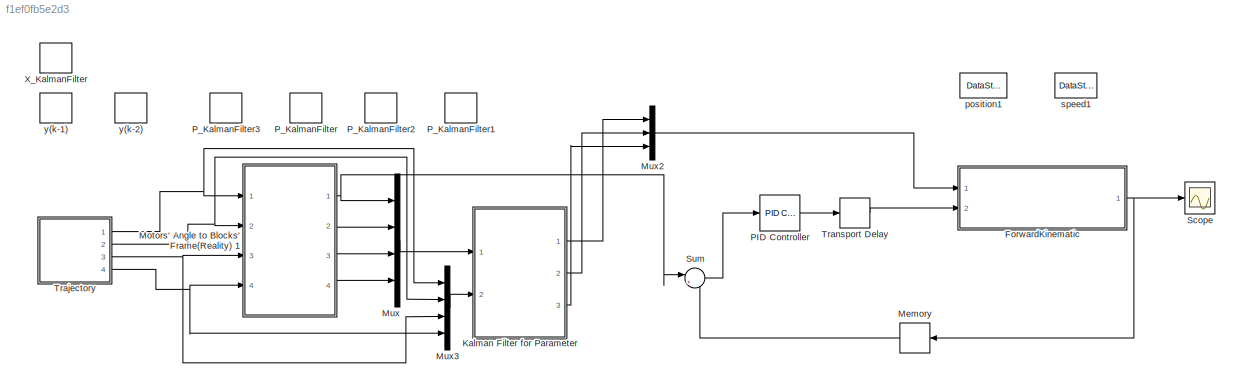
MODEL slx_f1ef0fb5e2d3
KIND model
CONFIG AbsTol = auto
CONFIG FixedStep = 0.01
CONFIG MaxStep = auto
CONFIG MinStep = auto
CONFIG RelTol = 1e-3
CONFIG SampleTimeConstraint = Unconstrained
CONFIG Solver = ode5
CONFIG SolverMode = Auto
CONFIG SolverName = ode5
CONFIG StartTime = 0.0
CONFIG StopTime = 10.0
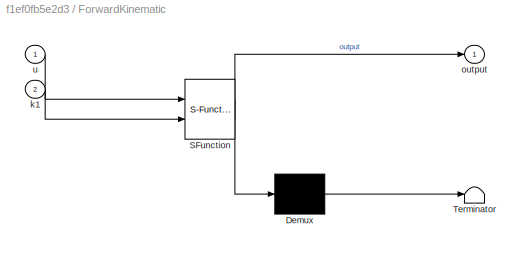
BLOCK [SubSystem] ForwardKinematic
  ErrorFcn = Stateflow.Translate.translate
  PermitHierarchicalResolution = ExplicitOnly
  Ports = [2, 1]
  RequestExecContextInheritance = off
  SFBlockType = MATLAB Function
  TreatAsAtomicUnit = on
BLOCK [Demux] ForwardKinematic/ Demux 
  Outputs = 1
  Ports = [1, 1]
BLOCK [S-Function] ForwardKinematic/ SFunction 
  EnableBusSupport = on
  FunctionName = sf_sfun
  PortCounts = [2 2]
  Ports = [2, 2]
  Tag = Stateflow S-Function KFPIDtest 4
BLOCK [Terminator] ForwardKinematic/ Terminator 
BLOCK [Inport] ForwardKinematic/k1
  IconDisplay = Port number
  Port = 2
BLOCK [Outport] ForwardKinematic/output
  IconDisplay = Port number
BLOCK [Inport] ForwardKinematic/u
  IconDisplay = Port number
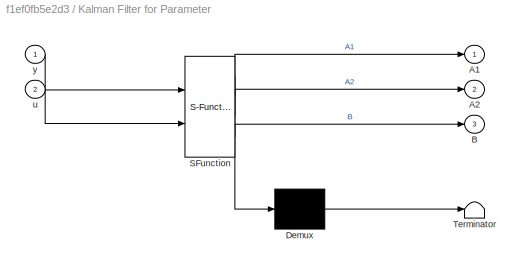
BLOCK [SubSystem] Kalman Filter for Parameter
  ErrorFcn = Stateflow.Translate.translate
  PermitHierarchicalResolution = ExplicitOnly
  Ports = [2, 3]
  RequestExecContextInheritance = off
  SFBlockType = MATLAB Function
  TreatAsAtomicUnit = on
BLOCK [Demux] Kalman Filter for Parameter/ Demux 
  Outputs = 1
  Ports = [1, 1]
BLOCK [S-Function] Kalman Filter for Parameter/ SFunction 
  EnableBusSupport = on
  FunctionName = sf_sfun
  PortCounts = [2 4]
  Ports = [2, 4]
  Tag = Stateflow S-Function KFPIDtest 3
BLOCK [Terminator] Kalman Filter for Parameter/ Terminator 
BLOCK [Outport] Kalman Filter for Parameter/A1
  IconDisplay = Port number
BLOCK [Outport] Kalman Filter for Parameter/A2
  IconDisplay = Port number
  Port = 2
BLOCK [Outport] Kalman Filter for Parameter/B
  IconDisplay = Port number
  Port = 3
BLOCK [Inport] Kalman Filter for Parameter/u
  IconDisplay = Port number
  Port = 2
BLOCK [Inport] Kalman Filter for Parameter/y
  IconDisplay = Port number
BLOCK [Memory] Memory
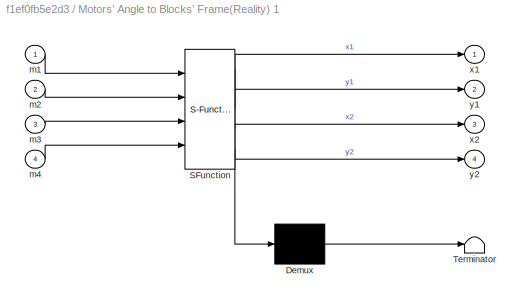
BLOCK [SubSystem] Motors' Angle to Blocks' Frame(Reality) 1
  ErrorFcn = Stateflow.Translate.translate
  PermitHierarchicalResolution = ExplicitOnly
  Ports = [4, 4]
  RequestExecContextInheritance = off
  SFBlockType = MATLAB Function
  TreatAsAtomicUnit = on
BLOCK [Demux] Motors' Angle to Blocks' Frame(Reality) 1/ Demux 
  Outputs = 1
  Ports = [1, 1]
BLOCK [S-Function] Motors' Angle to Blocks' Frame(Reality) 1/ SFunction 
  EnableBusSupport = on
  FunctionName = sf_sfun
  PortCounts = [4 5]
  Ports = [4, 5]
  Tag = Stateflow S-Function KFPIDtest 1
BLOCK [Terminator] Motors' Angle to Blocks' Frame(Reality) 1/ Terminator 
BLOCK [Inport] Motors' Angle to Blocks' Frame(Reality) 1/m1
  IconDisplay = Port number
BLOCK [Inport] Motors' Angle to Blocks' Frame(Reality) 1/m2
  IconDisplay = Port number
  Port = 2
BLOCK [Inport] Motors' Angle to Blocks' Frame(Reality) 1/m3
  IconDisplay = Port number
  Port = 3
BLOCK [Inport] Motors' Angle to Blocks' Frame(Reality) 1/m4
  IconDisplay = Port number
  Port = 4
BLOCK [Outport] Motors' Angle to Blocks' Frame(Reality) 1/x1
  IconDisplay = Port number
BLOCK [Outport] Motors' Angle to Blocks' Frame(Reality) 1/x2
  IconDisplay = Port number
  Port = 3
BLOCK [Outport] Motors' Angle to Blocks' Frame(Reality) 1/y1
  IconDisplay = Port number
  Port = 2
BLOCK [Outport] Motors' Angle to Blocks' Frame(Reality) 1/y2
  IconDisplay = Port number
  Port = 4
BLOCK [Mux] Mux
  DisplayOption = bar
  Ports = [4, 1]
BLOCK [Mux] Mux2
  DisplayOption = bar
  Inputs = 3
  Ports = [3, 1]
BLOCK [Mux] Mux3
  DisplayOption = bar
  Ports = [4, 1]
BLOCK [Reference] PID Controller  REF=simulink/Continuous/PID Controller
  AntiWindupMode = none
  Controller = PID
  ControllerParametersSource = internal
  D = 0
  DGainOutDataTypeStr = Inherit: Inherit via internal rule
  DOutDataTypeStr = Inherit: Inherit via internal rule
  DOutMax = []
  DOutMin = []
  DParamDataTypeStr = Inherit: Inherit via internal rule
  DParamMax = []
  DParamMin = []
  DProdOutDataTypeStr = Inherit: Inherit via internal rule
  DifferentiatorICPrevScaledInput = 0
  DifferentiatorOutDataTypeStr = Inherit: Inherit via internal rule
  DifferentiatorOutMax = []
  DifferentiatorOutMin = []
  ExternalReset = none
  FilterContinuousStateAttributes = ''
  FilterMethod = Forward Euler
  FilterOutDataTypeStr = Inherit: Inherit via internal rule
  FilterOutMax = []
  FilterOutMin = []
  FilterRTWStateStorageClass = Auto
  FilterStateMustResolveToSignalObject = off
  Form = Parallel
  I = 1
  IGainOutDataTypeStr = Inherit: Inherit via internal rule
  IOutDataTypeStr = Inherit: Inherit via internal rule
  IOutMax = []
  IOutMin = []
  IParamDataTypeStr = Inherit: Inherit via internal rule
  IParamMax = []
  IParamMin = []
  IProdOutDataTypeStr = Inherit: Inherit via internal rule
  IgnoreLimit = off
  InitialConditionForFilter = 0
  InitialConditionForIntegrator = 0
  InitialConditionSource = internal
  IntegratorContinuousStateAttributes = ''
  IntegratorMethod = Forward Euler
  IntegratorOutDataTypeStr = Inherit: Inherit via internal rule
  IntegratorOutMax = []
  IntegratorOutMin = []
  IntegratorRTWStateStorageClass = Auto
  IntegratorStateMustResolveToSignalObject = off
  Kb = 1
  KbOutDataTypeStr = Inherit: Inherit via internal rule
  KbOutMax = []
  KbOutMin = []
  KbParamDataTypeStr = Inherit: Inherit via internal rule
  KbParamMax = []
  KbParamMin = []
  Kt = 1
  KtOutDataTypeStr = Inherit: Inherit via internal rule
  KtOutMax = []
  KtOutMin = []
  KtParamDataTypeStr = Inherit: Inherit via internal rule
  KtParamMax = []
  KtParamMin = []
  LimitOutput = off
  LinearizeAsGain = on
  LockScale = off
  LowerSaturationLimit = -inf
  N = 100
  NGainOutDataTypeStr = Inherit: Inherit via internal rule
  NOutDataTypeStr = Inherit: Inherit via internal rule
  NOutMax = []
  NOutMin = []
  NParamDataTypeStr = Inherit: Inherit via internal rule
  NParamMax = []
  NParamMin = []
  NProdOutDataTypeStr = Inherit: Inherit via internal rule
  P = 1
  PGainOutDataTypeStr = Inherit: Inherit via internal rule
  POutDataTypeStr = Inherit: Inherit via internal rule
  POutMax = []
  POutMin = []
  PParamDataTypeStr = Inherit: Inherit via internal rule
  PParamMax = []
  PParamMin = []
  PProdOutDataTypeStr = Inherit: Inherit via internal rule
  Ports = [1, 1]
  RndMeth = Floor
  SampleTime = -1
  SaturateOnIntegerOverflow = off
  SaturationOutDataTypeStr = Inherit: Same as input
  SaturationOutMax = []
  SaturationOutMin = []
  SourceBlock = simulink/Continuous/PID Controller
  SourceType = PID 1dof
  SumAccumDataTypeStr = Inherit: Inherit via internal rule
  SumDAccumDataTypeStr = Inherit: Inherit via internal rule
  SumDOutDataTypeStr = Inherit: Inherit via internal rule
  SumDOutMax = []
  SumDOutMin = []
  SumI1AccumDataTypeStr = Inherit: Inherit via internal rule
  SumI1OutDataTypeStr = Inherit: Inherit via internal rule
  SumI1OutMax = []
  SumI1OutMin = []
  SumI2AccumDataTypeStr = Inherit: Inherit via internal rule
  SumI2OutDataTypeStr = Inherit: Inherit via internal rule
  SumI2OutMax = []
  SumI2OutMin = []
  SumI3AccumDataTypeStr = Inherit: Inherit via internal rule
  SumI3OutDataTypeStr = Inherit: Inherit via internal rule
  SumI3OutMax = []
  SumI3OutMin = []
  SumOutDataTypeStr = Inherit: Inherit via internal rule
  SumOutMax = []
  SumOutMin = []
  TimeDomain = Continuous-time
  TrackingMode = off
  UpperSaturationLimit = inf
  UseFilter = on
  ZeroCross = on
BLOCK [DataStoreMemory] P_KalmanFilter
  DataStoreName = P2
  InitialValue = [0.001,0,0;0,0.002,0;0,0,0.001]
  OutDataTypeStr = double
  ReadBeforeWriteMsg = warning
  SignalType = real
  WriteAfterReadMsg = warning
  WriteAfterWriteMsg = warning
BLOCK [DataStoreMemory] P_KalmanFilter1
  DataStoreName = P4
  InitialValue = [0.001,0,0;0,0.002,0;0,0,0.001]
  OutDataTypeStr = double
  ReadBeforeWriteMsg = warning
  SignalType = real
  WriteAfterReadMsg = warning
  WriteAfterWriteMsg = warning
BLOCK [DataStoreMemory] P_KalmanFilter2
  DataStoreName = P3
  InitialValue = [0.001,0,0;0,0.002,0;0,0,0.001]
  OutDataTypeStr = double
  ReadBeforeWriteMsg = warning
  SignalType = real
  WriteAfterReadMsg = warning
  WriteAfterWriteMsg = warning
BLOCK [DataStoreMemory] P_KalmanFilter3
  DataStoreName = P1
  InitialValue = [0.001,0,0;0,0.002,0;0,0,0.001]
  OutDataTypeStr = double
  ReadBeforeWriteMsg = warning
  SignalType = real
  WriteAfterReadMsg = warning
  WriteAfterWriteMsg = warning
BLOCK [Scope] Scope
  Floating = off
  NumInputPorts = 1
  Ports = [1]
  YMax = 0.06
  YMin = 0
BLOCK [Sum] Sum
  IconShape = round
  InputSameDT = off
  Inputs = |+-
  OutDataTypeStr = Inherit: Inherit via internal rule
  Ports = [2, 1]
  SaturateOnIntegerOverflow = off
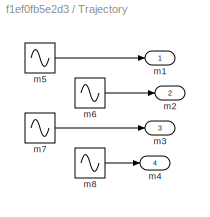
BLOCK [SubSystem] Trajectory
  Ports = [0, 4]
  RequestExecContextInheritance = off
BLOCK [Outport] Trajectory/m1
  IconDisplay = Port number
BLOCK [Outport] Trajectory/m2
  IconDisplay = Port number
  Port = 2
BLOCK [Outport] Trajectory/m3
  IconDisplay = Port number
  Port = 3
BLOCK [Outport] Trajectory/m4
  IconDisplay = Port number
  Port = 4
BLOCK [Sin] Trajectory/m5
  Ports = [0, 1]
  SampleTime = 0
BLOCK [Sin] Trajectory/m6
  Frequency = 2
  Ports = [0, 1]
  SampleTime = 0
BLOCK [Sin] Trajectory/m7
  Phase = 3.14
  Ports = [0, 1]
  SampleTime = 0
BLOCK [Sin] Trajectory/m8
  Frequency = 2
  Phase = 3.14
  Ports = [0, 1]
  SampleTime = 0
BLOCK [TransportDelay] Transport Delay
  DelayTime = 0.25
  Ports = [1, 1]
BLOCK [DataStoreMemory] X_KalmanFilter
  DataStoreName = Xkf
  InitialValue = [0,0,0,0;0,0,0,0;0,0,0,0]
  OutDataTypeStr = double
  ReadBeforeWriteMsg = warning
  SignalType = real
  WriteAfterReadMsg = warning
  WriteAfterWriteMsg = warning
BLOCK [DataStoreMemory] position1
  DataStoreName = y_1
  OutDataTypeStr = double
  ReadBeforeWriteMsg = warning
  SignalType = real
  WriteAfterReadMsg = warning
  WriteAfterWriteMsg = warning
BLOCK [DataStoreMemory] speed1
  DataStoreName = y_2
  OutDataTypeStr = double
  ReadBeforeWriteMsg = warning
  SignalType = real
  WriteAfterReadMsg = warning
  WriteAfterWriteMsg = warning
BLOCK [DataStoreMemory] y(k-1)
  DataStoreName = y1
  InitialValue = [0,0,0,0]
  OutDataTypeStr = double
  ReadBeforeWriteMsg = warning
  SignalType = real
  WriteAfterReadMsg = warning
  WriteAfterWriteMsg = warning
BLOCK [DataStoreMemory] y(k-2)
  DataStoreName = y2
  InitialValue = [0,0,0,0]
  OutDataTypeStr = double
  ReadBeforeWriteMsg = warning
  SignalType = real
  WriteAfterReadMsg = warning
  WriteAfterWriteMsg = warning
NET ForwardKinematic:1 -> Memory:1, Scope:1
LINE Kalman Filter for Parameter:1 -> Mux2:1
LINE Kalman Filter for Parameter:2 -> Mux2:2
LINE Kalman Filter for Parameter:3 -> Mux2:3
LINE Memory:1 -> Sum:2
NET Motors' Angle to Blocks' Frame(Reality) 1:1 -> Mux:1, Sum:1
LINE Motors' Angle to Blocks' Frame(Reality) 1:2 -> Mux:2
LINE Motors' Angle to Blocks' Frame(Reality) 1:3 -> Mux:3
LINE Motors' Angle to Blocks' Frame(Reality) 1:4 -> Mux:4
LINE Mux2:1 -> ForwardKinematic:1
LINE Mux3:1 -> Kalman Filter for Parameter:2
LINE Mux:1 -> Kalman Filter for Parameter:1
LINE PID Controller:1 -> Transport Delay:1
LINE Sum:1 -> PID Controller:1
LINE Trajectory/m5:1 -> Trajectory/m1:1
LINE Trajectory/m6:1 -> Trajectory/m2:1
LINE Trajectory/m7:1 -> Trajectory/m3:1
LINE Trajectory/m8:1 -> Trajectory/m4:1
NET Trajectory:1 -> Motors' Angle to Blocks' Frame(Reality) 1:1, Mux3:1
NET Trajectory:2 -> Motors' Angle to Blocks' Frame(Reality) 1:2, Mux3:2
NET Trajectory:3 -> Motors' Angle to Blocks' Frame(Reality) 1:3, Mux3:3
NET Trajectory:4 -> Motors' Angle to Blocks' Frame(Reality) 1:4, Mux3:4
LINE Transport Delay:1 -> ForwardKinematic:2
note: NET lines group one-source signal fan-out (src -> all destinations, sorted); 1:1 wires keep LINE
CHART Motors' Angle to Blocks' Frame(Reality) 1 states=1 transitions=1
  STATE_LABEL 'eML_blk_kernel()'
  STATE_LABEL 'SCRIPT:\nfunction [x1,y1,x2,y2] = Signal(m1,m2,m3,m4)\n\n\n\n%m1,m2,m3,m4为四个电机的当前时刻的角度值\n\n%最远距离\nD = 1.8;\n% %螺距\n% n = 0.02;\n% %最大圈数\n% ratio = D / n;\nv=sqrt(0.0025)*randn(4,1);\nx1 = m1 * D;\ny1 = m2 * D;\nx2 = m3 * D;\ny2 = m4 * D;\n\nif x1>=2\n    x1=2;\nelse\n    if x1<=-2\n        x1=-2;\n    end\nend\nif x2>=2\n    x2=2;\nelse\n    if x2<=-2\n        x2=-2;\n    end\nend\nif y1>=2\n    y1=2;\nelse\n    if y1<=-2\n        y1...<+88ch>'
CHART Kalman Filter for Parameter states=1 transitions=1
  STATE_LABEL 'eML_blk_kernel()'
  STATE_LABEL "SCRIPT:\nfunction [A1,A2,B] = KalmanFilter(y,u)\nglobal y1 y2 Xkf P1 P2 P3 P4\n%% 单值参数识别（范例）\nP = zeros(3,3,4);\nP(:,:,1) = P1;\nP(:,:,2) = P2;\nP(:,:,3) = P3;\nP(:,:,4) = P4;\nQ = zeros(3,3);%过程噪声方差\nR = 0.0001;%测量噪声方差\nF = 1;%状态转移矩阵\nfor i = 1:1:4\n    H = [y1(i) y2(i) u(i)];%1x3\n    Z = y(i) + sqrt(R) * randn(1);\n    X_pre = F * Xkf(:,i);%3x1\n    P_pre = F * P(:,:,i) * F' + Q;%3x3\n    Kg = P_pre * H' * inv(...<+302ch>"
CHART ForwardKinematic states=1 transitions=1
  STATE_LABEL 'eML_blk_kernel()'
  STATE_LABEL 'SCRIPT:\nfunction output = RobotForwardKinematic(u,k1) %输入1x4\nglobal y_1 y_2\n%% 单电机状态方程\nparam = u;\nA = [0 1;\n     -param(2) -param(1)];\nb = [0\n     param(3)];\nC = [0 1];\n% output = C * (A * x + b * u(13:16));\ny = [y_2;y_1];\nx = y;\n% v=sqrt(0.001)*randn(4,1);\noutput = C * (A * x + b * k1) ;\ny_2 = y_1;\ny_1 = output;\n%%\n'
